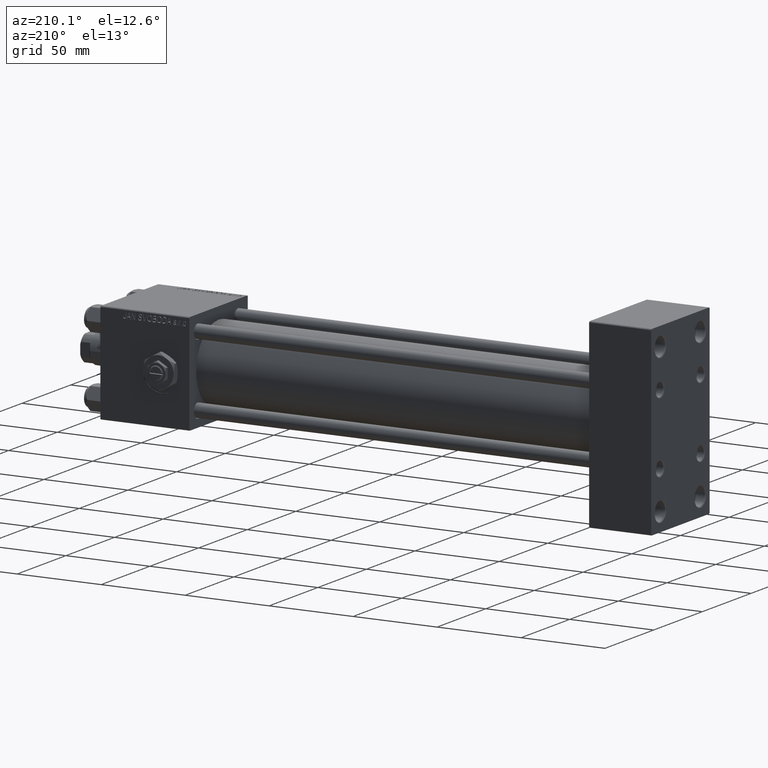
[diagram: clean part render]
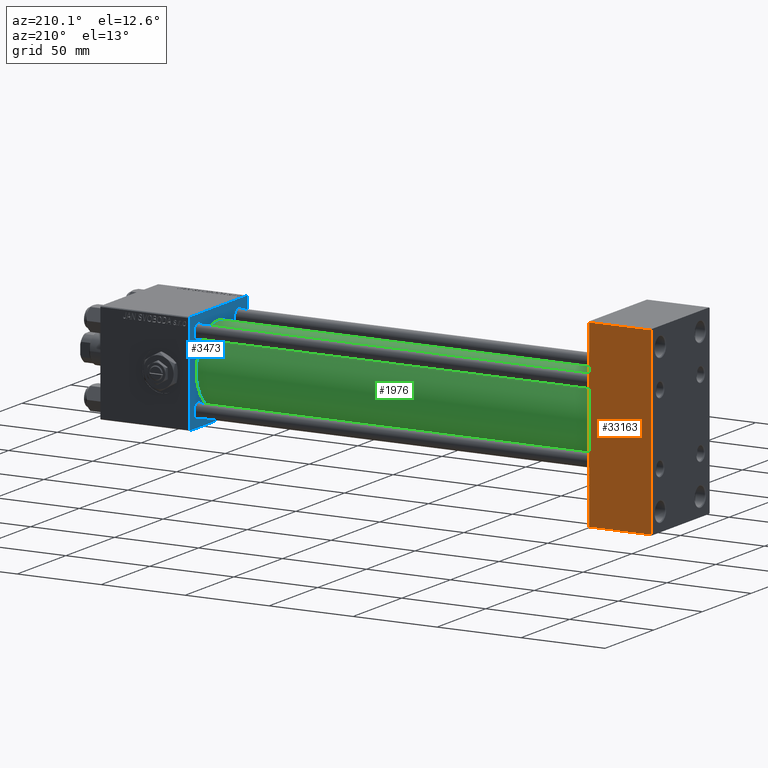
[diagram: same view with three faces highlighted in distinct colors, each labeled with its STEP entity id]
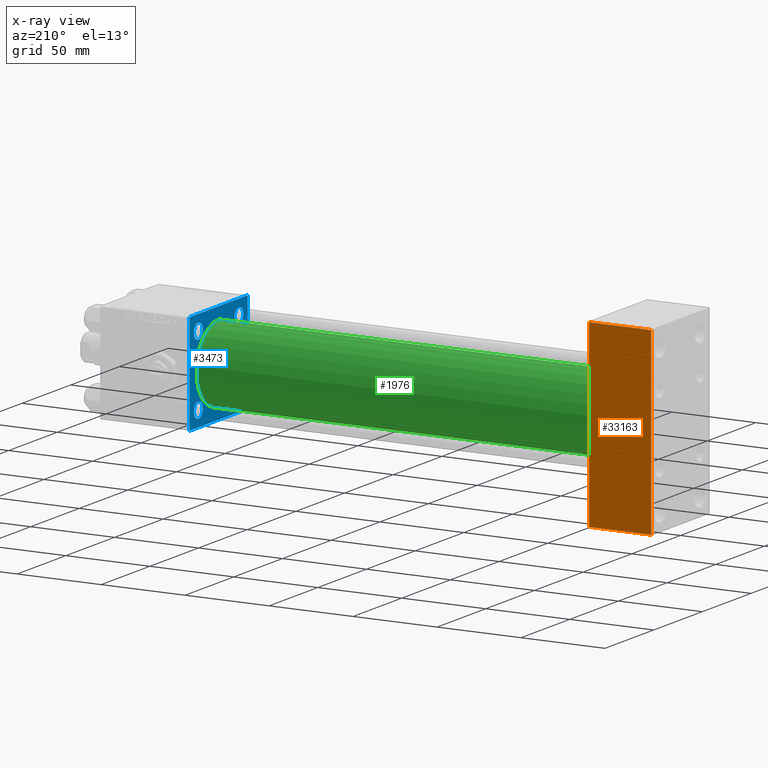
[diagram: x-ray of the same camera — body ghosted, the three highlighted faces saturated]
A machine part, auxiliary view with three faces highlighted in distinct colors.
The next image is the same camera in x-ray (body ghosted, the three faces saturated) — at least one of them is partly hidden behind the body in this view.
Their STEP definitions:

[orange] entity #33163 — the highlighted planar face has unit normal (0, 1, 0).
#1150 = CARTESIAN_POINT ( 'NONE',  ( 37.00000000000000000, 30.00000000000000355, 54.50000000000001421 ) ) ;
#1450 = EDGE_CURVE ( 'NONE', #29448, #49247, #11388, .T. ) ;
#4810 = DIRECTION ( 'NONE',  ( 0.000000000000000000, -0.000000000000000000, 1.000000000000000000 ) ) ;
#6184 = EDGE_LOOP ( 'NONE', ( #42120, #35606, #32042, #27522 ) ) ;
#8504 = LINE ( 'NONE', #1150, #42435 ) ;
#9921 = EDGE_CURVE ( 'NONE', #27325, #16064, #32201, .T. ) ;
#11101 = VECTOR ( 'NONE', #24597, 1000.000000000000000 ) ;
#11388 = LINE ( 'NONE', #15084, #17894 ) ;
#14932 = VECTOR ( 'NONE', #17048, 1000.000000000000000 ) ;
#15084 = CARTESIAN_POINT ( 'NONE',  ( 37.00000000000000000, 30.00000000000000355, -53.99999999999995737 ) ) ;
#15581 = FACE_OUTER_BOUND ( 'NONE', #6184, .T. ) ;
#16064 = VERTEX_POINT ( 'NONE', #42254 ) ;
#17048 = DIRECTION ( 'NONE',  ( 0.000000000000000000, 0.000000000000000000, -1.000000000000000000 ) ) ;
#17894 = VECTOR ( 'NONE', #35237, 1000.000000000000000 ) ;
#21230 = LINE ( 'NONE', #28822, #14932 ) ;
#22256 = CARTESIAN_POINT ( 'NONE',  ( 0.000000000000000000, 30.00000000000000355, -53.99999999999995737 ) ) ;
#24597 = DIRECTION ( 'NONE',  ( 1.000000000000000000, 0.000000000000000000, 0.000000000000000000 ) ) ;
#25361 = CARTESIAN_POINT ( 'NONE',  ( 37.00000000000000000, 30.00000000000000355, 54.00000000000001421 ) ) ;
#26359 = AXIS2_PLACEMENT_3D ( 'NONE', #39919, #48015, #4810 ) ;
#27325 = VERTEX_POINT ( 'NONE', #42656 ) ;
#27522 = ORIENTED_EDGE ( 'NONE', *, *, #9921, .T. ) ;
#28129 = PLANE ( 'NONE',  #26359 ) ;
#28822 = CARTESIAN_POINT ( 'NONE',  ( 0.000000000000000000, 30.00000000000000355, 54.50000000000001421 ) ) ;
#29448 = VERTEX_POINT ( 'NONE', #32457 ) ;
#32042 = ORIENTED_EDGE ( 'NONE', *, *, #45206, .F. ) ;
#32201 = LINE ( 'NONE', #25361, #11101 ) ;
#32457 = CARTESIAN_POINT ( 'NONE',  ( 37.00000000000000000, 30.00000000000000355, -53.99999999999995737 ) ) ;
#33163 = ADVANCED_FACE ( 'NONE', ( #15581 ), #28129, .T. ) ;
#35237 = DIRECTION ( 'NONE',  ( -1.000000000000000000, 0.000000000000000000, 0.000000000000000000 ) ) ;
#35606 = ORIENTED_EDGE ( 'NONE', *, *, #1450, .T. ) ;
#39312 = EDGE_CURVE ( 'NONE', #16064, #29448, #8504, .T. ) ;
#39919 = CARTESIAN_POINT ( 'NONE',  ( 37.00000000000000000, 30.00000000000000355, 54.50000000000001421 ) ) ;
#42120 = ORIENTED_EDGE ( 'NONE', *, *, #39312, .T. ) ;
#42254 = CARTESIAN_POINT ( 'NONE',  ( 37.00000000000000000, 30.00000000000000355, 54.00000000000001421 ) ) ;
#42435 = VECTOR ( 'NONE', #44375, 1000.000000000000000 ) ;
#42656 = CARTESIAN_POINT ( 'NONE',  ( 0.000000000000000000, 30.00000000000000355, 54.00000000000001421 ) ) ;
#44375 = DIRECTION ( 'NONE',  ( 0.000000000000000000, 0.000000000000000000, -1.000000000000000000 ) ) ;
#45206 = EDGE_CURVE ( 'NONE', #27325, #49247, #21230, .T. ) ;
#48015 = DIRECTION ( 'NONE',  ( -0.000000000000000000, 1.000000000000000000, 0.000000000000000000 ) ) ;
#49247 = VERTEX_POINT ( 'NONE', #22256 ) ;

[blue] entity #3473 — the highlighted planar face has unit normal (-1, 0, 0).
#2 = VERTEX_POINT ( 'NONE', #36115 ) ;
#218 = AXIS2_PLACEMENT_3D ( 'NONE', #13182, #13959, #9254 ) ;
#1088 = LINE ( 'NONE', #49783, #34998 ) ;
#1360 = DIRECTION ( 'NONE',  ( 0.000000000000000000, 0.000000000000000000, -1.000000000000000000 ) ) ;
#1422 = VERTEX_POINT ( 'NONE', #3025 ) ;
#2382 = CIRCLE ( 'NONE', #51712, 4.499999999999976019 ) ;
#3025 = CARTESIAN_POINT ( 'NONE',  ( 274.9999999999999432, 29.49999999999994316, -29.99999999999999289 ) ) ;
#3473 = ADVANCED_FACE ( 'NONE', ( #29781, #22189, #45744, #41814, #5949, #6213 ), #37896, .T. ) ;
#3610 = VERTEX_POINT ( 'NONE', #44910 ) ;
#4015 = AXIS2_PLACEMENT_3D ( 'NONE', #43166, #23520, #14650 ) ;
#4022 = DIRECTION ( 'NONE',  ( 0.000000000000000000, 0.000000000000000000, 1.000000000000000000 ) ) ;
#4662 = VECTOR ( 'NONE', #33425, 1000.000000000000000 ) ;
#5899 = CARTESIAN_POINT ( 'NONE',  ( 274.9999999999999432, -29.50000000000002487, -30.00000000000000000 ) ) ;
#5949 = FACE_BOUND ( 'NONE', #6923, .T. ) ;
#6213 = FACE_OUTER_BOUND ( 'NONE', #14661, .T. ) ;
#6465 = CIRCLE ( 'NONE', #23985, 4.499999999999976019 ) ;
#6677 = EDGE_CURVE ( 'NONE', #38804, #40880, #21122, .T. ) ;
#6923 = EDGE_LOOP ( 'NONE', ( #47216, #41224 ) ) ;
#6967 = EDGE_LOOP ( 'NONE', ( #48310, #31072 ) ) ;
#7092 = CARTESIAN_POINT ( 'NONE',  ( 274.9999999999999432, 20.84999999999999787, 20.85000000000000142 ) ) ;
#7549 = DIRECTION ( 'NONE',  ( 0.000000000000000000, 0.000000000000000000, -1.000000000000000000 ) ) ;
#7701 = VERTEX_POINT ( 'NONE', #17992 ) ;
#7802 = CIRCLE ( 'NONE', #11176, 4.499999999999976019 ) ;
#8457 = ORIENTED_EDGE ( 'NONE', *, *, #9861, .T. ) ;
#8879 = CARTESIAN_POINT ( 'NONE',  ( 274.9999999999999432, 20.84999999999999787, 20.85000000000000142 ) ) ;
#9254 = DIRECTION ( 'NONE',  ( 0.000000000000000000, 0.000000000000000000, 1.000000000000000000 ) ) ;
#9332 = LINE ( 'NONE', #20866, #4662 ) ;
#9409 = CARTESIAN_POINT ( 'NONE',  ( 274.9999999999999432, -20.84999999999999076, 16.35000000000002629 ) ) ;
#9649 = CARTESIAN_POINT ( 'NONE',  ( 274.9999999999999432, 20.84999999999999787, -16.35000000000002274 ) ) ;
#9728 = CARTESIAN_POINT ( 'NONE',  ( 274.9999999999999432, -30.00000000000000000, -29.49999999999998579 ) ) ;
#9861 = EDGE_CURVE ( 'NONE', #48047, #42069, #39504, .T. ) ;
#10279 = LINE ( 'NONE', #33589, #29810 ) ;
#10603 = ORIENTED_EDGE ( 'NONE', *, *, #50841, .T. ) ;
#10700 = ORIENTED_EDGE ( 'NONE', *, *, #13821, .T. ) ;
#10952 = CIRCLE ( 'NONE', #28504, 4.499999999999976019 ) ;
#11031 = ORIENTED_EDGE ( 'NONE', *, *, #40145, .T. ) ;
#11165 = DIRECTION ( 'NONE',  ( 0.000000000000000000, -0.7071067811865279218, 0.7071067811865671127 ) ) ;
#11176 = AXIS2_PLACEMENT_3D ( 'NONE', #35375, #50572, #51331 ) ;
#11726 = CARTESIAN_POINT ( 'NONE',  ( 274.9999999999999432, 30.00000000000000000, 29.50000000000000000 ) ) ;
#11735 = EDGE_CURVE ( 'NONE', #47538, #38870, #7802, .T. ) ;
#12529 = CARTESIAN_POINT ( 'NONE',  ( 274.9999999999999432, 20.84999999999999787, -25.34999999999997655 ) ) ;
#13182 = CARTESIAN_POINT ( 'NONE',  ( 274.9999999999999432, 20.84999999999999787, -20.85000000000000142 ) ) ;
#13492 = ORIENTED_EDGE ( 'NONE', *, *, #28544, .T. ) ;
#13821 = EDGE_CURVE ( 'NONE', #35803, #28422, #34782, .T. ) ;
#13959 = DIRECTION ( 'NONE',  ( 1.000000000000000000, -0.000000000000000000, 0.000000000000000000 ) ) ;
#14078 = DIRECTION ( 'NONE',  ( -1.000000000000000000, 0.000000000000000000, -0.000000000000000000 ) ) ;
#14650 = DIRECTION ( 'NONE',  ( 0.000000000000000000, 0.000000000000000000, -1.000000000000000000 ) ) ;
#14661 = EDGE_LOOP ( 'NONE', ( #30229, #13492, #33120, #16370, #19052, #10700, #28928, #25843 ) ) ;
#14675 = VECTOR ( 'NONE', #15921, 1000.000000000000114 ) ;
#15110 = ORIENTED_EDGE ( 'NONE', *, *, #27442, .T. ) ;
#15132 = CARTESIAN_POINT ( 'NONE',  ( 274.9999999999999432, 20.84999999999999787, 16.35000000000002274 ) ) ;
#15720 = LINE ( 'NONE', #43971, #44061 ) ;
#15921 = DIRECTION ( 'NONE',  ( -0.000000000000000000, 0.7071067811865474617, 0.7071067811865474617 ) ) ;
#15930 = DIRECTION ( 'NONE',  ( 0.000000000000000000, 0.000000000000000000, 1.000000000000000000 ) ) ;
#16364 = EDGE_CURVE ( 'NONE', #26228, #7701, #21335, .T. ) ;
#16370 = ORIENTED_EDGE ( 'NONE', *, *, #35144, .T. ) ;
#16440 = AXIS2_PLACEMENT_3D ( 'NONE', #34965, #28109, #4022 ) ;
#17127 = EDGE_CURVE ( 'NONE', #28422, #36785, #21274, .T. ) ;
#17190 = AXIS2_PLACEMENT_3D ( 'NONE', #31134, #43165, #7549 ) ;
#17992 = CARTESIAN_POINT ( 'NONE',  ( 274.9999999999999432, 2.146024240737016609E-16, -23.00000000000000000 ) ) ;
#18366 = DIRECTION ( 'NONE',  ( 1.000000000000000000, -0.000000000000000000, 0.000000000000000000 ) ) ;
#19052 = ORIENTED_EDGE ( 'NONE', *, *, #22640, .F. ) ;
#19548 = CARTESIAN_POINT ( 'NONE',  ( 274.9999999999999432, -20.84999999999999076, -20.85000000000000497 ) ) ;
#19573 = CARTESIAN_POINT ( 'NONE',  ( 274.9999999999999432, -29.74999999999997158, 29.74999999999997158 ) ) ;
#19747 = ORIENTED_EDGE ( 'NONE', *, *, #6677, .T. ) ;
#20866 = CARTESIAN_POINT ( 'NONE',  ( 274.9999999999999432, -30.00000000000000000, 29.99999999999999289 ) ) ;
#21122 = CIRCLE ( 'NONE', #218, 4.499999999999976019 ) ;
#21274 = LINE ( 'NONE', #37238, #28915 ) ;
#21335 = CIRCLE ( 'NONE', #17190, 23.00000000000000000 ) ;
#22189 = FACE_BOUND ( 'NONE', #24503, .T. ) ;
#22329 = DIRECTION ( 'NONE',  ( 0.000000000000000000, -1.000000000000000000, -1.156482317317871478E-16 ) ) ;
#22341 = EDGE_CURVE ( 'NONE', #38870, #47538, #32335, .T. ) ;
#22640 = EDGE_CURVE ( 'NONE', #35803, #29493, #10279, .T. ) ;
#23520 = DIRECTION ( 'NONE',  ( 1.000000000000000000, 0.000000000000000000, 0.000000000000000000 ) ) ;
#23710 = CARTESIAN_POINT ( 'NONE',  ( 274.9999999999999432, -20.84999999999999076, -20.85000000000000497 ) ) ;
#23985 = AXIS2_PLACEMENT_3D ( 'NONE', #7092, #18366, #46367 ) ;
#24041 = EDGE_CURVE ( 'NONE', #42069, #48047, #6465, .T. ) ;
#24503 = EDGE_LOOP ( 'NONE', ( #8457, #48527 ) ) ;
#25838 = EDGE_CURVE ( 'NONE', #7701, #26228, #30768, .T. ) ;
#25843 = ORIENTED_EDGE ( 'NONE', *, *, #37759, .T. ) ;
#26228 = VERTEX_POINT ( 'NONE', #31184 ) ;
#26685 = VECTOR ( 'NONE', #11165, 1000.000000000000000 ) ;
#27066 = EDGE_CURVE ( 'NONE', #1422, #51826, #1088, .T. ) ;
#27442 = EDGE_CURVE ( 'NONE', #40880, #38804, #2382, .T. ) ;
#28109 = DIRECTION ( 'NONE',  ( 1.000000000000000000, -0.000000000000000000, 0.000000000000000000 ) ) ;
#28422 = VERTEX_POINT ( 'NONE', #11726 ) ;
#28504 = AXIS2_PLACEMENT_3D ( 'NONE', #19548, #35526, #43123 ) ;
#28544 = EDGE_CURVE ( 'NONE', #51826, #47265, #34499, .T. ) ;
#28915 = VECTOR ( 'NONE', #1360, 1000.000000000000000 ) ;
#28928 = ORIENTED_EDGE ( 'NONE', *, *, #17127, .T. ) ;
#29493 = VERTEX_POINT ( 'NONE', #31936 ) ;
#29781 = FACE_BOUND ( 'NONE', #6967, .T. ) ;
#29810 = VECTOR ( 'NONE', #22329, 1000.000000000000000 ) ;
#30229 = ORIENTED_EDGE ( 'NONE', *, *, #27066, .T. ) ;
#30310 = DIRECTION ( 'NONE',  ( -0.000000000000000000, 0.000000000000000000, 1.000000000000000000 ) ) ;
#30768 = CIRCLE ( 'NONE', #4015, 23.00000000000000000 ) ;
#31072 = ORIENTED_EDGE ( 'NONE', *, *, #11735, .T. ) ;
#31134 = CARTESIAN_POINT ( 'NONE',  ( 274.9999999999999432, -2.602085213965210642E-15, 0.000000000000000000 ) ) ;
#31184 = CARTESIAN_POINT ( 'NONE',  ( 274.9999999999999432, -2.602085213965210642E-15, 23.00000000000000000 ) ) ;
#31187 = AXIS2_PLACEMENT_3D ( 'NONE', #8879, #41326, #32713 ) ;
#31936 = CARTESIAN_POINT ( 'NONE',  ( 274.9999999999999432, -29.49999999999994316, 29.99999999999999289 ) ) ;
#32335 = CIRCLE ( 'NONE', #16440, 4.499999999999976019 ) ;
#32713 = DIRECTION ( 'NONE',  ( 0.000000000000000000, 0.000000000000000000, 1.000000000000000000 ) ) ;
#32984 = EDGE_LOOP ( 'NONE', ( #19747, #15110 ) ) ;
#33120 = ORIENTED_EDGE ( 'NONE', *, *, #35404, .F. ) ;
#33425 = DIRECTION ( 'NONE',  ( 0.000000000000000000, 0.000000000000000000, -1.000000000000000000 ) ) ;
#33589 = CARTESIAN_POINT ( 'NONE',  ( 274.9999999999999432, 30.00000000000000000, 30.00000000000000000 ) ) ;
#33977 = CARTESIAN_POINT ( 'NONE',  ( 274.9999999999999432, 0.000000000000000000, 0.000000000000000000 ) ) ;
#34499 = LINE ( 'NONE', #42067, #26685 ) ;
#34782 = LINE ( 'NONE', #50735, #39650 ) ;
#34965 = CARTESIAN_POINT ( 'NONE',  ( 274.9999999999999432, -20.84999999999999076, 20.85000000000000497 ) ) ;
#34998 = VECTOR ( 'NONE', #37738, 1000.000000000000000 ) ;
#35144 = EDGE_CURVE ( 'NONE', #2, #29493, #42110, .T. ) ;
#35311 = DIRECTION ( 'NONE',  ( 1.000000000000000000, -0.000000000000000000, 0.000000000000000000 ) ) ;
#35375 = CARTESIAN_POINT ( 'NONE',  ( 274.9999999999999432, -20.84999999999999076, 20.85000000000000497 ) ) ;
#35404 = EDGE_CURVE ( 'NONE', #2, #47265, #9332, .T. ) ;
#35526 = DIRECTION ( 'NONE',  ( 1.000000000000000000, -0.000000000000000000, 0.000000000000000000 ) ) ;
#35803 = VERTEX_POINT ( 'NONE', #43218 ) ;
#36115 = CARTESIAN_POINT ( 'NONE',  ( 274.9999999999999432, -30.00000000000000000, 29.49999999999993605 ) ) ;
#36785 = VERTEX_POINT ( 'NONE', #38073 ) ;
#36896 = AXIS2_PLACEMENT_3D ( 'NONE', #33977, #14078, #30310 ) ;
#37238 = CARTESIAN_POINT ( 'NONE',  ( 274.9999999999999432, 30.00000000000000000, 30.00000000000000000 ) ) ;
#37738 = DIRECTION ( 'NONE',  ( 0.000000000000000000, -1.000000000000000000, -1.156482317317871478E-16 ) ) ;
#37759 = EDGE_CURVE ( 'NONE', #36785, #1422, #15720, .T. ) ;
#37896 = PLANE ( 'NONE',  #36896 ) ;
#38073 = CARTESIAN_POINT ( 'NONE',  ( 274.9999999999999432, 30.00000000000000000, -29.49999999999992184 ) ) ;
#38804 = VERTEX_POINT ( 'NONE', #9649 ) ;
#38870 = VERTEX_POINT ( 'NONE', #51259 ) ;
#39108 = CIRCLE ( 'NONE', #50846, 4.499999999999976019 ) ;
#39237 = CARTESIAN_POINT ( 'NONE',  ( 274.9999999999999432, 20.84999999999999787, -20.85000000000000142 ) ) ;
#39373 = CARTESIAN_POINT ( 'NONE',  ( 274.9999999999999432, 20.84999999999999787, 25.34999999999997655 ) ) ;
#39504 = CIRCLE ( 'NONE', #31187, 4.499999999999976019 ) ;
#39650 = VECTOR ( 'NONE', #42628, 1000.000000000000000 ) ;
#39684 = DIRECTION ( 'NONE',  ( 0.000000000000000000, 0.000000000000000000, 1.000000000000000000 ) ) ;
#39791 = DIRECTION ( 'NONE',  ( -0.000000000000000000, -0.7071067811865474617, -0.7071067811865474617 ) ) ;
#40145 = EDGE_CURVE ( 'NONE', #3610, #50419, #39108, .T. ) ;
#40880 = VERTEX_POINT ( 'NONE', #12529 ) ;
#41224 = ORIENTED_EDGE ( 'NONE', *, *, #25838, .T. ) ;
#41326 = DIRECTION ( 'NONE',  ( 1.000000000000000000, -0.000000000000000000, 0.000000000000000000 ) ) ;
#41814 = FACE_BOUND ( 'NONE', #44758, .T. ) ;
#42067 = CARTESIAN_POINT ( 'NONE',  ( 274.9999999999999432, -29.75000000000082778, -29.74999999999917577 ) ) ;
#42069 = VERTEX_POINT ( 'NONE', #15132 ) ;
#42110 = LINE ( 'NONE', #19573, #14675 ) ;
#42628 = DIRECTION ( 'NONE',  ( 0.000000000000000000, 0.7071067811865279218, -0.7071067811865671127 ) ) ;
#43123 = DIRECTION ( 'NONE',  ( 0.000000000000000000, 0.000000000000000000, 1.000000000000000000 ) ) ;
#43165 = DIRECTION ( 'NONE',  ( 1.000000000000000000, 0.000000000000000000, 0.000000000000000000 ) ) ;
#43166 = CARTESIAN_POINT ( 'NONE',  ( 274.9999999999999432, -2.602085213965210642E-15, 0.000000000000000000 ) ) ;
#43218 = CARTESIAN_POINT ( 'NONE',  ( 274.9999999999999432, 29.50000000000002487, 30.00000000000000000 ) ) ;
#43604 = DIRECTION ( 'NONE',  ( 1.000000000000000000, -0.000000000000000000, 0.000000000000000000 ) ) ;
#43971 = CARTESIAN_POINT ( 'NONE',  ( 274.9999999999999432, 29.74999999999997158, -29.74999999999997158 ) ) ;
#44061 = VECTOR ( 'NONE', #39791, 1000.000000000000114 ) ;
#44758 = EDGE_LOOP ( 'NONE', ( #10603, #11031 ) ) ;
#44910 = CARTESIAN_POINT ( 'NONE',  ( 274.9999999999999432, -20.84999999999999076, -25.34999999999998010 ) ) ;
#45744 = FACE_BOUND ( 'NONE', #32984, .T. ) ;
#46367 = DIRECTION ( 'NONE',  ( 0.000000000000000000, 0.000000000000000000, 1.000000000000000000 ) ) ;
#47216 = ORIENTED_EDGE ( 'NONE', *, *, #16364, .T. ) ;
#47265 = VERTEX_POINT ( 'NONE', #9728 ) ;
#47538 = VERTEX_POINT ( 'NONE', #9409 ) ;
#48047 = VERTEX_POINT ( 'NONE', #39373 ) ;
#48310 = ORIENTED_EDGE ( 'NONE', *, *, #22341, .T. ) ;
#48527 = ORIENTED_EDGE ( 'NONE', *, *, #24041, .T. ) ;
#49229 = CARTESIAN_POINT ( 'NONE',  ( 274.9999999999999432, -20.84999999999999076, -16.35000000000002629 ) ) ;
#49783 = CARTESIAN_POINT ( 'NONE',  ( 274.9999999999999432, 30.00000000000000000, -29.99999999999999289 ) ) ;
#50419 = VERTEX_POINT ( 'NONE', #49229 ) ;
#50572 = DIRECTION ( 'NONE',  ( 1.000000000000000000, -0.000000000000000000, 0.000000000000000000 ) ) ;
#50735 = CARTESIAN_POINT ( 'NONE',  ( 274.9999999999999432, 29.75000000000082778, 29.74999999999917577 ) ) ;
#50841 = EDGE_CURVE ( 'NONE', #50419, #3610, #10952, .T. ) ;
#50846 = AXIS2_PLACEMENT_3D ( 'NONE', #23710, #43604, #39684 ) ;
#51259 = CARTESIAN_POINT ( 'NONE',  ( 274.9999999999999432, -20.84999999999999076, 25.34999999999998010 ) ) ;
#51331 = DIRECTION ( 'NONE',  ( 0.000000000000000000, 0.000000000000000000, 1.000000000000000000 ) ) ;
#51712 = AXIS2_PLACEMENT_3D ( 'NONE', #39237, #35311, #15930 ) ;
#51826 = VERTEX_POINT ( 'NONE', #5899 ) ;

[green] entity #1976 — the highlighted cylindrical surface (partial cylindrical patch) has radius 23 mm, axis along (-1, -0, -0).
#333 = AXIS2_PLACEMENT_3D ( 'NONE', #33102, #17394, #29169 ) ;
#845 = DIRECTION ( 'NONE',  ( -1.000000000000000000, -0.000000000000000000, -0.000000000000000000 ) ) ;
#1976 = ADVANCED_FACE ( 'NONE', ( #29380 ), #45344, .T. ) ;
#2338 = VECTOR ( 'NONE', #44448, 1000.000000000000000 ) ;
#2633 = LINE ( 'NONE', #22805, #8591 ) ;
#4015 = AXIS2_PLACEMENT_3D ( 'NONE', #43166, #23520, #14650 ) ;
#5407 = CARTESIAN_POINT ( 'NONE',  ( 37.00000000000000711, -2.602085213965210642E-15, 23.00000000000000000 ) ) ;
#7701 = VERTEX_POINT ( 'NONE', #17992 ) ;
#8591 = VECTOR ( 'NONE', #21561, 1000.000000000000000 ) ;
#9475 = DIRECTION ( 'NONE',  ( 0.000000000000000000, 0.000000000000000000, 1.000000000000000000 ) ) ;
#9792 = EDGE_CURVE ( 'NONE', #26228, #12244, #2633, .T. ) ;
#12244 = VERTEX_POINT ( 'NONE', #5407 ) ;
#12899 = CARTESIAN_POINT ( 'NONE',  ( 274.9999999999999432, -2.602085213965210642E-15, 0.000000000000000000 ) ) ;
#13780 = VERTEX_POINT ( 'NONE', #18793 ) ;
#14650 = DIRECTION ( 'NONE',  ( 0.000000000000000000, 0.000000000000000000, -1.000000000000000000 ) ) ;
#17394 = DIRECTION ( 'NONE',  ( 1.000000000000000000, -0.000000000000000000, 0.000000000000000000 ) ) ;
#17992 = CARTESIAN_POINT ( 'NONE',  ( 274.9999999999999432, 2.146024240737016609E-16, -23.00000000000000000 ) ) ;
#18264 = ORIENTED_EDGE ( 'NONE', *, *, #25838, .F. ) ;
#18793 = CARTESIAN_POINT ( 'NONE',  ( 37.00000000000000711, 2.146024240737016609E-16, -23.00000000000000000 ) ) ;
#20102 = ORIENTED_EDGE ( 'NONE', *, *, #26048, .T. ) ;
#21561 = DIRECTION ( 'NONE',  ( -1.000000000000000000, -0.000000000000000000, -0.000000000000000000 ) ) ;
#22095 = CIRCLE ( 'NONE', #333, 23.00000000000000000 ) ;
#22805 = CARTESIAN_POINT ( 'NONE',  ( 274.9999999999999432, -2.602085213965210642E-15, 23.00000000000000000 ) ) ;
#22914 = AXIS2_PLACEMENT_3D ( 'NONE', #12899, #845, #9475 ) ;
#23520 = DIRECTION ( 'NONE',  ( 1.000000000000000000, 0.000000000000000000, 0.000000000000000000 ) ) ;
#24808 = CARTESIAN_POINT ( 'NONE',  ( 274.9999999999999432, 2.146024240737016609E-16, -23.00000000000000000 ) ) ;
#25838 = EDGE_CURVE ( 'NONE', #7701, #26228, #30768, .T. ) ;
#26048 = EDGE_CURVE ( 'NONE', #7701, #13780, #36599, .T. ) ;
#26228 = VERTEX_POINT ( 'NONE', #31184 ) ;
#28223 = ORIENTED_EDGE ( 'NONE', *, *, #30947, .T. ) ;
#29169 = DIRECTION ( 'NONE',  ( 0.000000000000000000, 0.000000000000000000, 1.000000000000000000 ) ) ;
#29380 = FACE_OUTER_BOUND ( 'NONE', #44685, .T. ) ;
#30768 = CIRCLE ( 'NONE', #4015, 23.00000000000000000 ) ;
#30947 = EDGE_CURVE ( 'NONE', #13780, #12244, #22095, .T. ) ;
#31184 = CARTESIAN_POINT ( 'NONE',  ( 274.9999999999999432, -2.602085213965210642E-15, 23.00000000000000000 ) ) ;
#33102 = CARTESIAN_POINT ( 'NONE',  ( 37.00000000000000711, -2.602085213965210642E-15, 0.000000000000000000 ) ) ;
#36599 = LINE ( 'NONE', #24808, #2338 ) ;
#43166 = CARTESIAN_POINT ( 'NONE',  ( 274.9999999999999432, -2.602085213965210642E-15, 0.000000000000000000 ) ) ;
#44448 = DIRECTION ( 'NONE',  ( -1.000000000000000000, -0.000000000000000000, -0.000000000000000000 ) ) ;
#44685 = EDGE_LOOP ( 'NONE', ( #18264, #20102, #28223, #45620 ) ) ;
#45344 = CYLINDRICAL_SURFACE ( 'NONE', #22914, 23.00000000000000000 ) ;
#45620 = ORIENTED_EDGE ( 'NONE', *, *, #9792, .F. ) ;